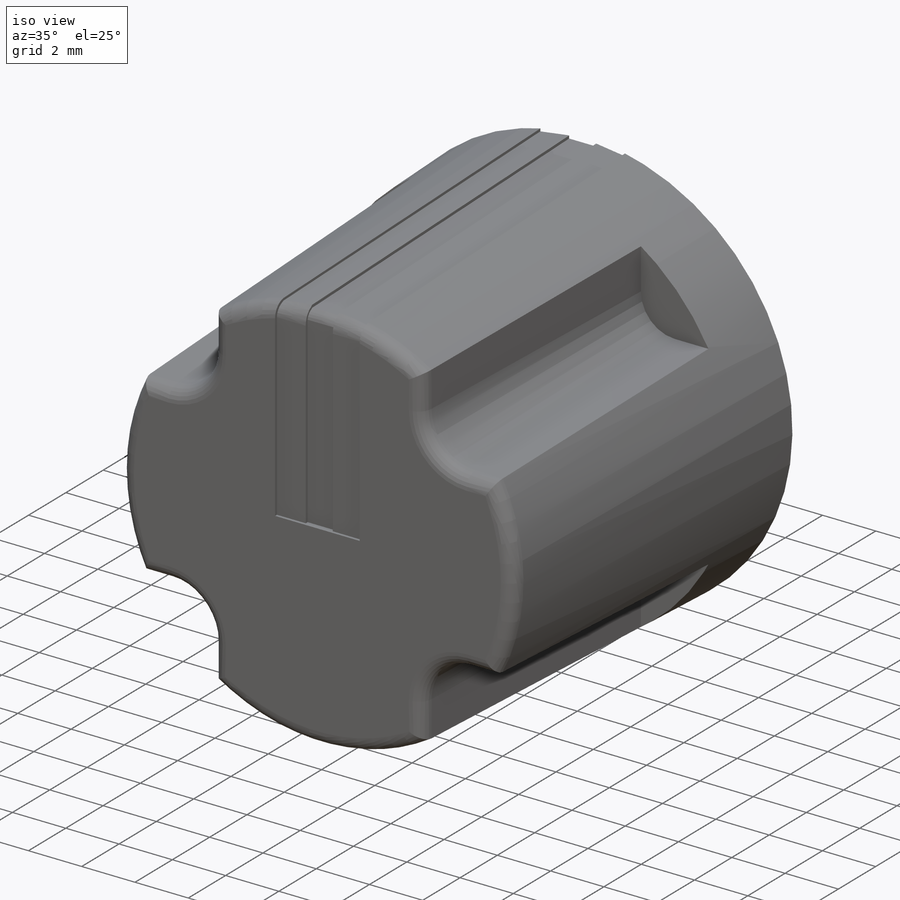
[diagram: iso view]
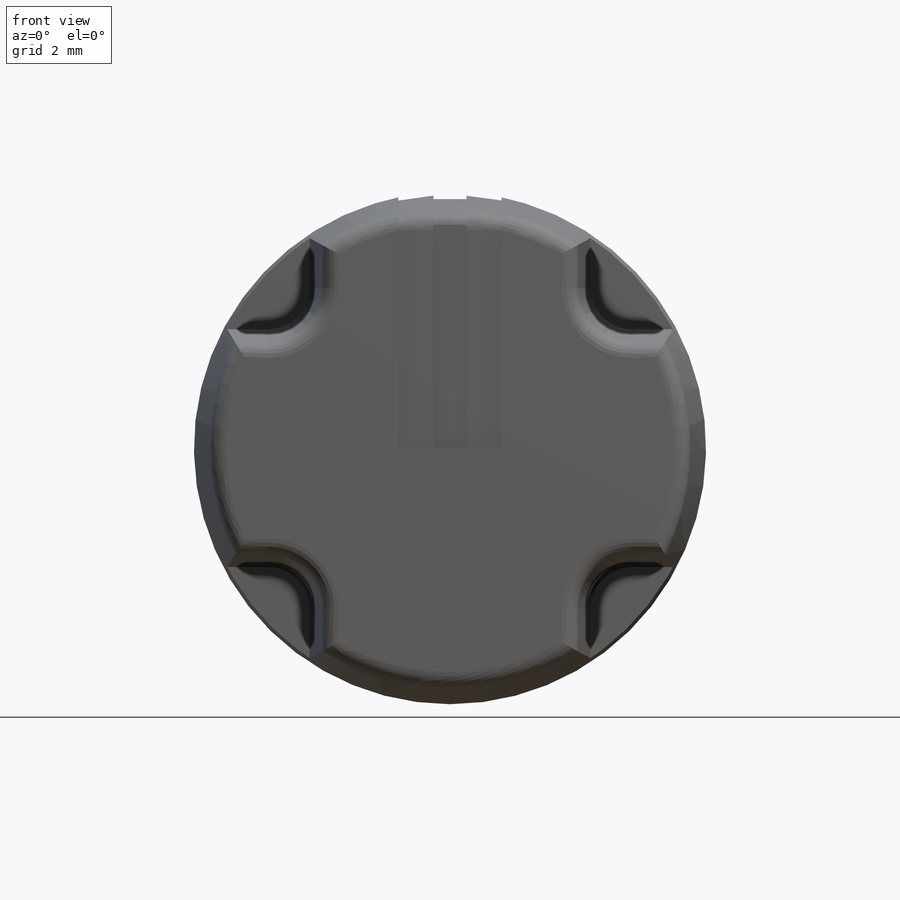
[diagram: front view]
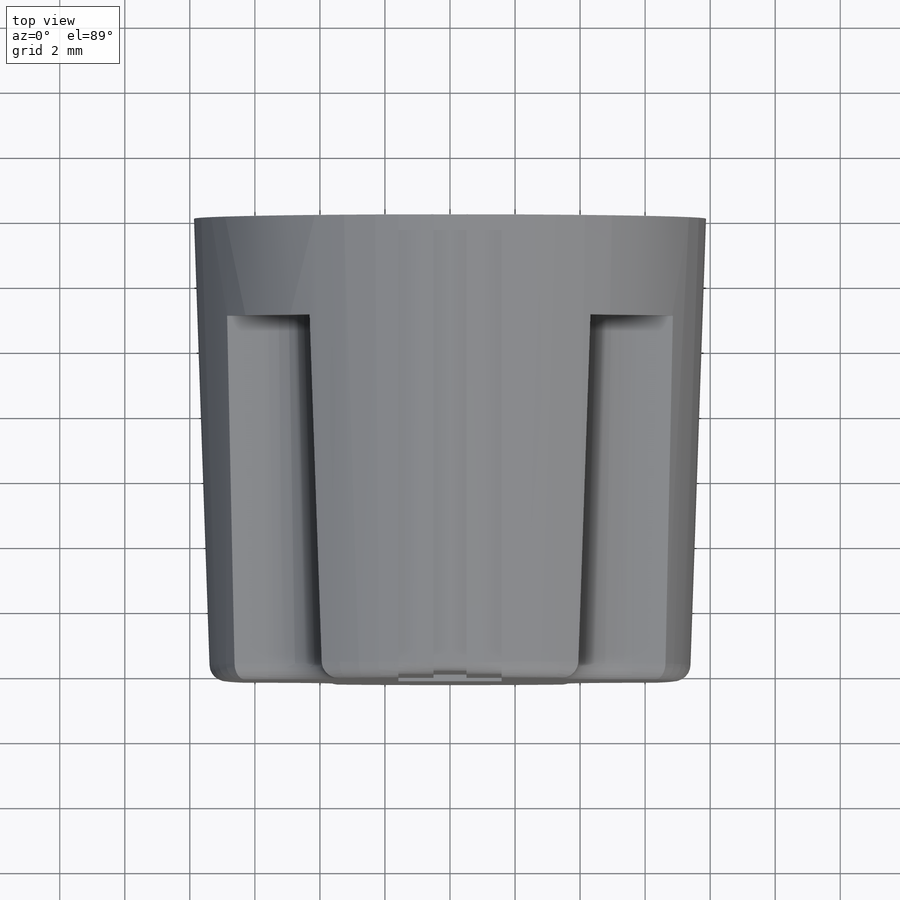
[diagram: top view]
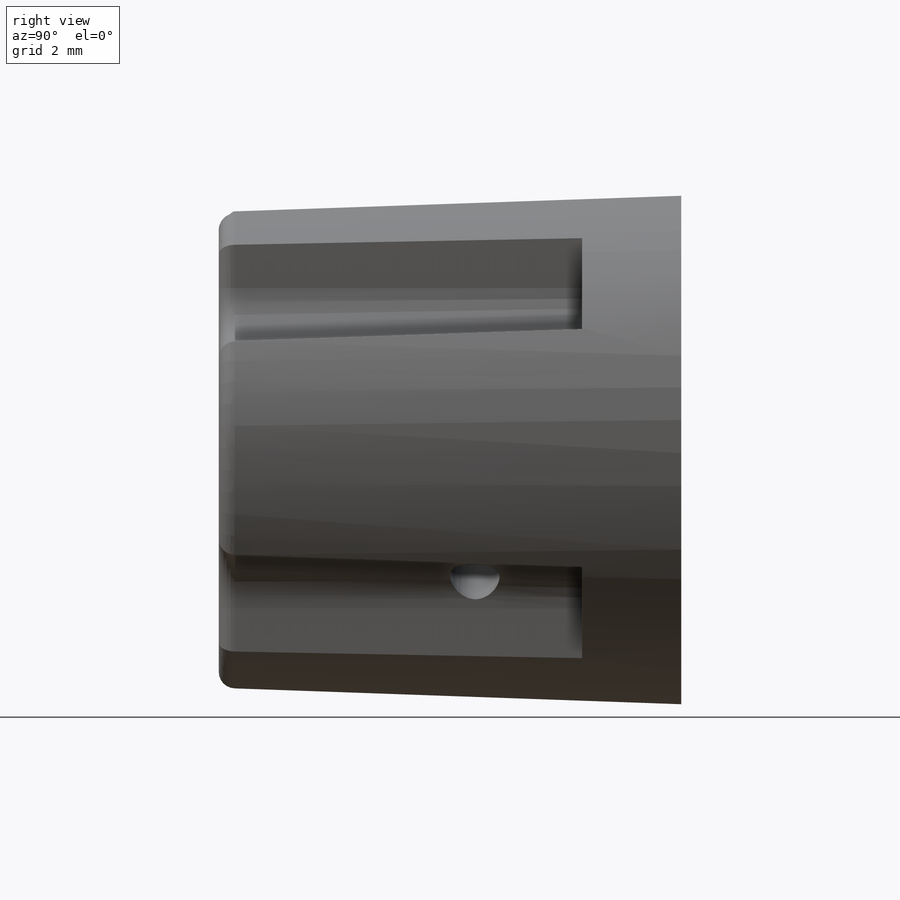
[diagram: right view]
SOLIDWORKS PART (.sldprt)
format: sldprt  version: not decoded by parser v0  size: 536,576 bytes
history: native  units: mm
features: sketch x12, cut_extrude x6, plane x4, extrude x2, material x1, fillet x1, mirror x1 (+11 scaffold rows collapsed)
feature tree (38):
  scaffold x11  (default folders/planes/origin — collapsed)
  material  "PMMA"
  sketch  "Skica2"  dims[D1=15.748mm]
  extrude  "Přidat vysunutím2"  Depth=3.048mm
  sketch  "Skica3"  dims[D5=3.302mm D1=4.826mm D2=4.826mm D3=4.826mm D4=4.826mm]
  extrude  "Přidat vysunutím3"  Depth=11.176mm
  fillet  "Zaoblit1"  Radius=0.508mm
  sketch  "Skica4"  dims[D1=6.35mm D3=6.35mm D2=5.4864mm]
  cut_extrude  "Odebrat vysunutím1"  Depth=12.7mm
  sketch  "Skica5"  dims[D1=~4.260741mm]
  cut_extrude  "Odebrat vysunutím2"  Depth=2.032mm
  sketch  "Skica6"  dims[D1=1.5875mm D2=1.5875mm]
  cut_extrude  "Odebrat vysunutím3"  Depth=0.1016mm
  sketch  "Skica7"  dims[D1=0.508mm D2=0.508mm]
  cut_extrude  "Odebrat vysunutím4"  Depth=0.1016mm
  plane  "Rovina1"
  sketch  "Skica8"
  plane  "Rovina2"
  sketch  "Skica9"
  plane  "Rovina3"
  sketch  "Skica10"  dims[c1.D1=15.748mm c1.D2=15.748mm c1.D3=15.5448mm c2.D2=0.1016mm c2.D3=0.1016mm]
  cut_extrude  "Odebrat vysunutím5"  [1 undecoded]
  sketch  "Skica11"  dims[D1=0.0mm]
  sketch  "Skica12"
  plane  "Rovina4"
  sketch  "Skica13"  dims[D2=0.4685mm D1=6.35mm]
  cut_extrude  "Odebrat vysunutím6"  [1 undecoded]
  mirror  "Zrcadlit1"
decode coverage: 16 of 22 modeling features carry decoded parameters
note: ~ marks probable driven/reference dimensions
note: 2 parameter values undecoded
note: suppression state not decoded; provenance and decode notes live in map.json
